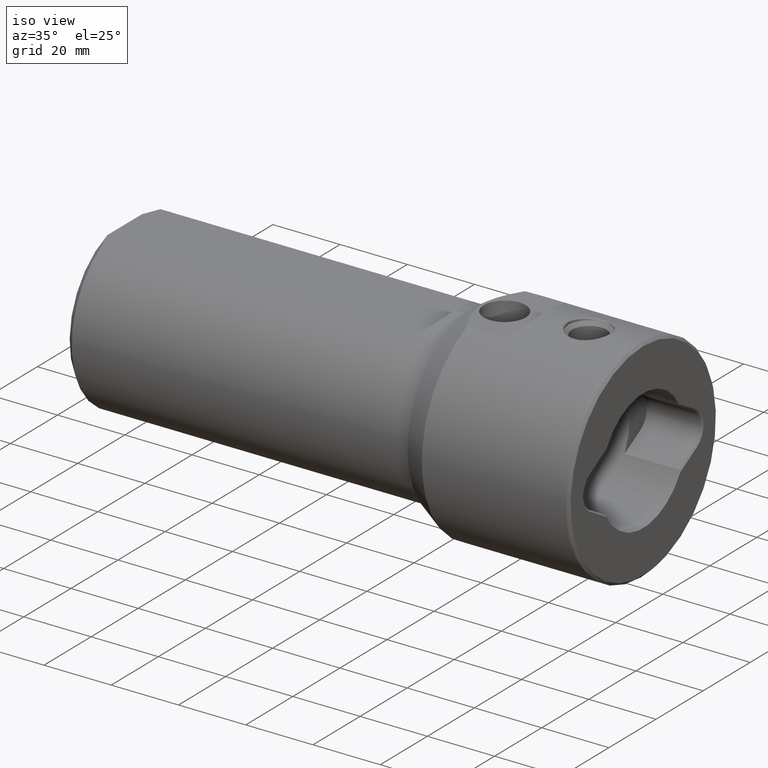
[diagram: clean part render]
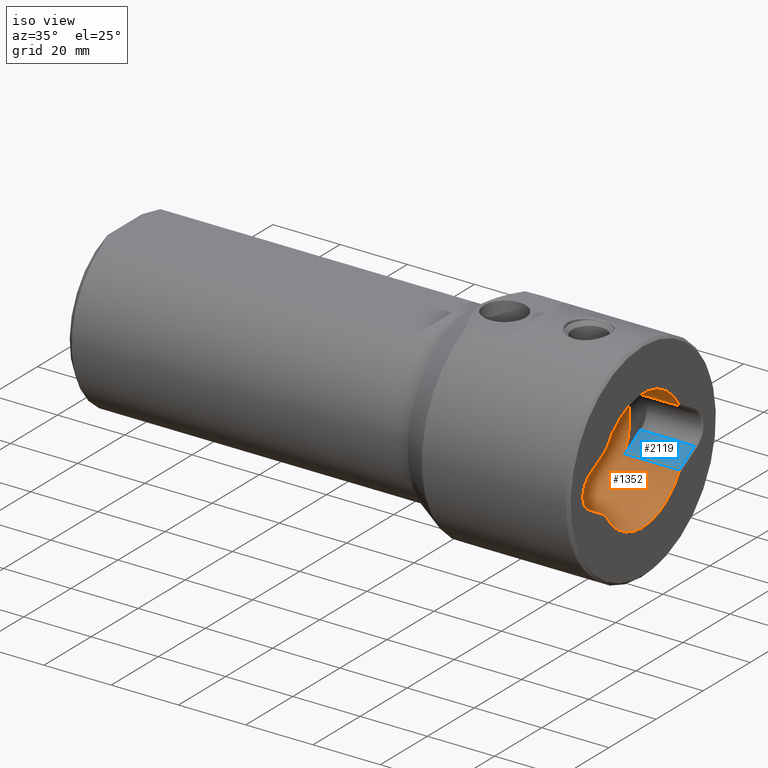
[diagram: same view with the hole feature highlighted: cylindrical wall and planar end face, labeled with their STEP entity ids]
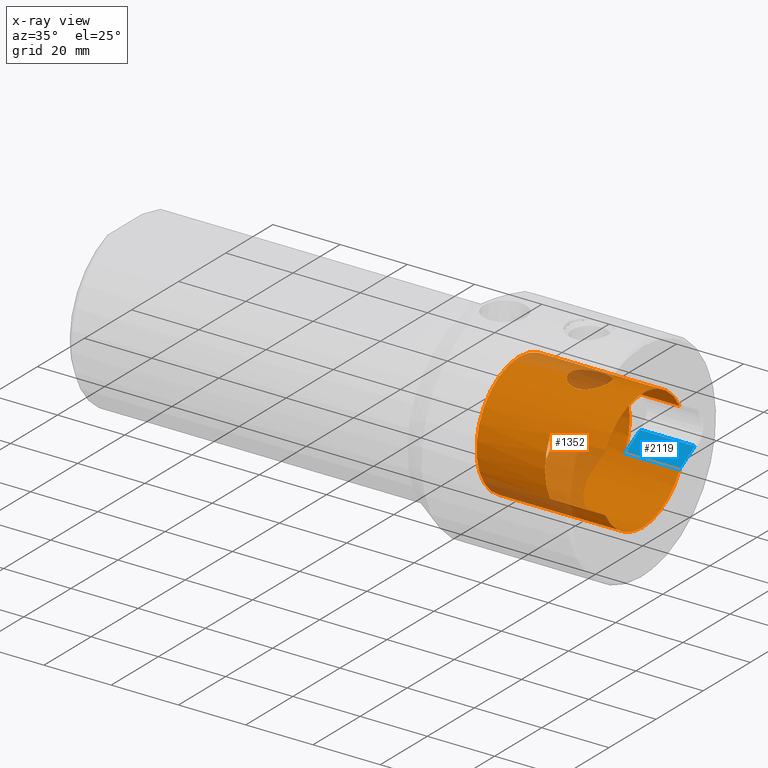
[diagram: x-ray of the same camera — body ghosted, the hole faces saturated]
A machine part, iso view. The highlighted faces form one hole feature of diameter 36 mm: the cylindrical wall (entity #1352, orange) and its adjacent planar end face (entity #2119, blue) — they share a circular edge in the B-rep.
The next image is the same camera in x-ray (body ghosted, the hole faces saturated) — the bore reads through the body.
Wall:
#4 = CARTESIAN_POINT ( 'NONE',  ( 139.4071677451608195, -5.275322577585097150, 17.20965742494446005 ) ) ;
#19 = CARTESIAN_POINT ( 'NONE',  ( 140.6225911474079737, -4.856214130552694463, 17.33314558854511844 ) ) ;
#25 = CIRCLE ( 'NONE', #101, 18.00000000000000000 ) ;
#27 = CARTESIAN_POINT ( 'NONE',  ( 136.7160160209145943, -5.275392231855630776, 17.21206762638223253 ) ) ;
#53 = LINE ( 'NONE', #1141, #848 ) ;
#66 = ORIENTED_EDGE ( 'NONE', *, *, #2093, .T. ) ;
#101 = AXIS2_PLACEMENT_3D ( 'NONE', #973, #602, #2269 ) ;
#121 = DIRECTION ( 'NONE',  ( 0.0000000000000000000, 0.0000000000000000000, -1.000000000000000000 ) ) ;
#126 = DIRECTION ( 'NONE',  ( 0.0000000000000000000, 0.0000000000000000000, 1.000000000000000000 ) ) ;
#130 = EDGE_CURVE ( 'NONE', #1479, #302, #1504, .T. ) ;
#145 = CARTESIAN_POINT ( 'NONE',  ( 112.1999999999461437, 0.0000000000000000000, 0.0000000000000000000 ) ) ;
#173 = EDGE_LOOP ( 'NONE', ( #241, #435, #496, #414, #296, #66, #209, #539, #1334, #712, #1026, #2165 ) ) ;
#181 = CARTESIAN_POINT ( 'NONE',  ( 134.4804482182612730, 4.077507523875326001, 17.53395048440978243 ) ) ;
#188 = CARTESIAN_POINT ( 'NONE',  ( 134.7599842732042532, 4.301005571742517297, 17.47974789442518073 ) ) ;
#192 = CARTESIAN_POINT ( 'NONE',  ( 153.8506716728961123, -15.77012789448501628, -8.678276287125131105 ) ) ;
#197 = CARTESIAN_POINT ( 'NONE',  ( 136.8967225192805870, 5.274663257304549546, 17.20985962191030438 ) ) ;
#201 = LINE ( 'NONE', #2233, #2075 ) ;
#209 = ORIENTED_EDGE ( 'NONE', *, *, #222, .T. ) ;
#210 = CARTESIAN_POINT ( 'NONE',  ( 135.3675463720331038, -4.684189885420427579, 17.38003936146874295 ) ) ;
#213 = AXIS2_PLACEMENT_3D ( 'NONE', #145, #2349, #1410 ) ;
#220 = CARTESIAN_POINT ( 'NONE',  ( 135.3589903073947198, 4.689469159019379774, 17.37956024723951742 ) ) ;
#222 = EDGE_CURVE ( 'NONE', #970, #1479, #25, .T. ) ;
#235 = FACE_BOUND ( 'NONE', #1087, .T. ) ;
#241 = ORIENTED_EDGE ( 'NONE', *, *, #1753, .T. ) ;
#271 = CARTESIAN_POINT ( 'NONE',  ( 137.5999999999431225, 0.0000000000000000000, 0.0000000000000000000 ) ) ;
#296 = ORIENTED_EDGE ( 'NONE', *, *, #982, .T. ) ;
#302 = VERTEX_POINT ( 'NONE', #1058 ) ;
#372 = CARTESIAN_POINT ( 'NONE',  ( 133.3432084980435661, -2.725912216281905387, 17.79485885170778303 ) ) ;
#381 = CARTESIAN_POINT ( 'NONE',  ( 138.8749981593181531, -5.380134665842309261, 17.17729603003633443 ) ) ;
#390 = CARTESIAN_POINT ( 'NONE',  ( 143.6998959704182823, 0.3555535653348128600, 18.00000000000000711 ) ) ;
#392 = CARTESIAN_POINT ( 'NONE',  ( 138.5161126754194356, -5.414859626381410607, 17.16622542328071077 ) ) ;
#400 = CARTESIAN_POINT ( 'NONE',  ( 132.9588676637769140, -1.912530922042934733, 17.89889519390576211 ) ) ;
#405 = CARTESIAN_POINT ( 'NONE',  ( 133.9680648088449288, 3.577402560942947840, 17.64277977286892707 ) ) ;
#414 = ORIENTED_EDGE ( 'NONE', *, *, #2352, .F. ) ;
#434 = DIRECTION ( 'NONE',  ( 1.000000000000000000, -0.0000000000000000000, -0.0000000000000000000 ) ) ;
#435 = ORIENTED_EDGE ( 'NONE', *, *, #617, .T. ) ;
#439 = CARTESIAN_POINT ( 'NONE',  ( 142.9836636985161817, 2.746618726639267649, 17.80190843968231107 ) ) ;
#441 = DIRECTION ( 'NONE',  ( 1.000000000000000000, -0.0000000000000000000, -0.0000000000000000000 ) ) ;
#463 = CARTESIAN_POINT ( 'NONE',  ( 153.9006727623731479, -15.72312315220965750, 8.763150772669689559 ) ) ;
#464 = VECTOR ( 'NONE', #596, 1000.000000000000000 ) ;
#465 = VERTEX_POINT ( 'NONE', #955 ) ;
#485 = AXIS2_PLACEMENT_3D ( 'NONE', #271, #832, #983 ) ;
#490 = FACE_OUTER_BOUND ( 'NONE', #173, .T. ) ;
#496 = ORIENTED_EDGE ( 'NONE', *, *, #1942, .F. ) ;
#498 = CARTESIAN_POINT ( 'NONE',  ( 143.7000000497833980, 2.204364238465235033E-15, 18.00000000000000000 ) ) ;
#509 = EDGE_CURVE ( 'NONE', #1331, #1059, #201, .T. ) ;
#513 =( BOUNDED_CURVE ( )  B_SPLINE_CURVE ( 3, ( #2208, #192, #1453, #1287 ),
 .UNSPECIFIED., .F., .F. ) 
 B_SPLINE_CURVE_WITH_KNOTS ( ( 4, 4 ),
 ( 5.733670025123926095, 5.749840058269255927 ),
 .UNSPECIFIED. ) 
 CURVE ( )  GEOMETRIC_REPRESENTATION_ITEM ( )  RATIONAL_B_SPLINE_CURVE ( ( 1.000000000000000000, 0.9999782109543648989, 0.9999782109543648989, 1.000000000000000000 ) ) 
 REPRESENTATION_ITEM ( '' )  );
#515 = VERTEX_POINT ( 'NONE', #1214 ) ;
#534 = VECTOR ( 'NONE', #1519, 1000.000000000000000 ) ;
#539 = ORIENTED_EDGE ( 'NONE', *, *, #130, .T. ) ;
#543 = CARTESIAN_POINT ( 'NONE',  ( 134.4848323067971307, -4.081226048703459952, 17.53309746227882115 ) ) ;
#551 = CARTESIAN_POINT ( 'NONE',  ( 140.6936762733481885, 4.809866024486192160, 17.34551927460076826 ) ) ;
#554 = CARTESIAN_POINT ( 'NONE',  ( 132.7434343652002156, -1.228688811699040873, 17.95885357221229484 ) ) ;
#559 = CARTESIAN_POINT ( 'NONE',  ( 132.8956890606161210, -1.741993651575351132, 17.91632804205162444 ) ) ;
#586 = LINE ( 'NONE', #1002, #534 ) ;
#596 = DIRECTION ( 'NONE',  ( 1.000000000000000000, -0.0000000000000000000, -0.0000000000000000000 ) ) ;
#602 = DIRECTION ( 'NONE',  ( 1.000000000000000000, 0.0000000000000000000, 0.0000000000000000000 ) ) ;
#617 = EDGE_CURVE ( 'NONE', #2055, #2078, #925, .T. ) ;
#623 = CARTESIAN_POINT ( 'NONE',  ( 153.9499999999461295, 0.0000000000000000000, 0.0000000000000000000 ) ) ;
#668 = CARTESIAN_POINT ( 'NONE',  ( 153.9006727623731194, 15.72312315220964685, 8.763150772669717981 ) ) ;
#712 = ORIENTED_EDGE ( 'NONE', *, *, #2225, .F. ) ;
#713 = EDGE_CURVE ( 'NONE', #1059, #1974, #790, .T. ) ;
#718 = CARTESIAN_POINT ( 'NONE',  ( 141.8195953230894020, -4.077874613042330232, 17.53386956080541381 ) ) ;
#728 = CARTESIAN_POINT ( 'NONE',  ( 135.8547184170847970, -4.924406833935957906, 17.31334101392724989 ) ) ;
#733 = CARTESIAN_POINT ( 'NONE',  ( 143.3398538865617979, 1.911986393682834739, 17.89895385736674527 ) ) ;
#738 = CARTESIAN_POINT ( 'NONE',  ( 136.1950096335361877, 5.062115865894671884, 17.27356385820862883 ) ) ;
#747 = CARTESIAN_POINT ( 'NONE',  ( 132.7428654689053360, 1.403430375279089759, 17.95795583747455382 ) ) ;
#761 = CARTESIAN_POINT ( 'NONE',  ( 142.9504682745342166, -2.717572966758940112, 17.79437340771247023 ) ) ;
#765 = EDGE_LOOP ( 'NONE', ( #1424 ) ) ;
#768 = CARTESIAN_POINT ( 'NONE',  ( 143.1211103841731926, -2.405015297314012201, 17.83930573824131471 ) ) ;
#781 = CARTESIAN_POINT ( 'NONE',  ( 153.7999999999430827, 15.81644489633135819, 8.593024545601727127 ) ) ;
#788 = CARTESIAN_POINT ( 'NONE',  ( 153.9499999999461295, 15.67543374207076212, 8.847642454233202614 ) ) ;
#790 =( BOUNDED_CURVE ( )  B_SPLINE_CURVE ( 3, ( #1573, #1924, #668, #2295 ),
 .UNSPECIFIED., .F., .T. ) 
 B_SPLINE_CURVE_WITH_KNOTS ( ( 4, 4 ),
 ( 5.733670025123929648, 5.749840058269260368 ),
 .UNSPECIFIED. ) 
 CURVE ( )  GEOMETRIC_REPRESENTATION_ITEM ( )  RATIONAL_B_SPLINE_CURVE ( ( 1.000000000000000000, 0.9999782109543648989, 0.9999782109543648989, 1.000000000000000000 ) ) 
 REPRESENTATION_ITEM ( '' )  );
#815 = CARTESIAN_POINT ( 'NONE',  ( 153.8506716728961408, -15.77012789448499497, 8.678276287125175514 ) ) ;
#832 = DIRECTION ( 'NONE',  ( -1.000000000000000000, -0.0000000000000000000, -0.0000000000000000000 ) ) ;
#848 = VECTOR ( 'NONE', #434, 1000.000000000000000 ) ;
#883 = VERTEX_POINT ( 'NONE', #1609 ) ;
#895 = CARTESIAN_POINT ( 'NONE',  ( 142.5593472136473281, -3.306248342122016570, 17.69622244244113674 ) ) ;
#904 = CARTESIAN_POINT ( 'NONE',  ( 138.8772917870732329, 5.414802009908745717, 17.16624359679500955 ) ) ;
#915 = CARTESIAN_POINT ( 'NONE',  ( 135.6078598936707635, -4.808643124717407957, 17.34585835498858941 ) ) ;
#922 = CARTESIAN_POINT ( 'NONE',  ( 135.6795860826698288, 4.855542281536477489, 17.33333456711514131 ) ) ;
#925 =( BOUNDED_CURVE ( )  B_SPLINE_CURVE ( 3, ( #988, #463, #815, #1318 ),
 .UNSPECIFIED., .F., .T. ) 
 B_SPLINE_CURVE_WITH_KNOTS ( ( 4, 4 ),
 ( 0.5333452489103285288, 0.5495152820556566953 ),
 .UNSPECIFIED. ) 
 CURVE ( )  GEOMETRIC_REPRESENTATION_ITEM ( )  RATIONAL_B_SPLINE_CURVE ( ( 1.000000000000000000, 0.9999782109543648989, 0.9999782109543648989, 1.000000000000000000 ) ) 
 REPRESENTATION_ITEM ( '' )  );
#927 = CARTESIAN_POINT ( 'NONE',  ( 136.1066967494883500, 5.028651010217463302, 17.28334364775512455 ) ) ;
#955 = CARTESIAN_POINT ( 'NONE',  ( 137.5999999999431225, -15.81644489633135819, 8.593024545601721798 ) ) ;
#968 = CARTESIAN_POINT ( 'NONE',  ( 143.7000000497833980, 2.710505431213761085E-15, 18.00000000000000355 ) ) ;
#970 = VERTEX_POINT ( 'NONE', #1984 ) ;
#973 = CARTESIAN_POINT ( 'NONE',  ( 153.9499999999461295, 0.0000000000000000000, 0.0000000000000000000 ) ) ;
#982 = EDGE_CURVE ( 'NONE', #1048, #1651, #1418, .T. ) ;
#983 = DIRECTION ( 'NONE',  ( 0.0000000000000000000, 0.0000000000000000000, -1.000000000000000000 ) ) ;
#988 = CARTESIAN_POINT ( 'NONE',  ( 153.9499999999461295, -15.67543374207077456, 8.847642454233159981 ) ) ;
#1002 = CARTESIAN_POINT ( 'NONE',  ( 137.5999999999431225, -15.81644489633135819, 8.593024545601721798 ) ) ;
#1026 = ORIENTED_EDGE ( 'NONE', *, *, #509, .T. ) ;
#1048 = VERTEX_POINT ( 'NONE', #1715 ) ;
#1058 = CARTESIAN_POINT ( 'NONE',  ( 153.7999999999431111, 15.81644489633137241, -8.593024545601693376 ) ) ;
#1059 = VERTEX_POINT ( 'NONE', #781 ) ;
#1082 = CARTESIAN_POINT ( 'NONE',  ( 136.4569918073772214, 5.152039899776192478, 17.24694866929598192 ) ) ;
#1087 = EDGE_LOOP ( 'NONE', ( #2198 ) ) ;
#1092 = CARTESIAN_POINT ( 'NONE',  ( 137.7882245050393237, 5.414550071365628270, 17.16632306384884288 ) ) ;
#1097 = CARTESIAN_POINT ( 'NONE',  ( 140.9336031977051960, 4.685438517971939554, 17.37970270777146453 ) ) ;
#1105 = CARTESIAN_POINT ( 'NONE',  ( 135.2125733590289656, -4.594255491006206782, 17.40410430008466491 ) ) ;
#1117 = CARTESIAN_POINT ( 'NONE',  ( 135.9375997356319488, -4.960218887504321827, 17.30310831216911538 ) ) ;
#1127 = CARTESIAN_POINT ( 'NONE',  ( 143.1987407815099687, -2.244865655166357055, 17.86026857338545071 ) ) ;
#1132 = CIRCLE ( 'NONE', #1212, 18.00000000000000000 ) ;
#1135 = CIRCLE ( 'NONE', #1542, 18.00000000000000000 ) ;
#1141 = CARTESIAN_POINT ( 'NONE',  ( 137.5999999999431225, 15.81644489633137241, -8.593024545601693376 ) ) ;
#1164 = B_SPLINE_CURVE_WITH_KNOTS ( 'NONE', 3,
 ( #1758, #390, #1253, #1178, #1930, #1242, #733, #439, #1181, #2313, #2145, #2029, #1097, #551, #1275, #1661, #1655, #2206, #904, #1092, #1464, #197, #1810, #1082, #1263, #738, #927, #922, #220, #188, #181, #405, #1822, #1450, #1457, #747, #2359, #1258, #2002, #554, #1441, #559, #400, #2181, #372, #1634, #2008, #543, #1837, #1105, #210, #915, #1630, #728, #1117, #27, #2187, #392, #381, #4, #1642, #1831, #2015, #1291, #2199, #19, #1805, #1285, #718, #1993, #895, #2174, #761, #768, #1127, #1319, #1299, #968 ),
 .UNSPECIFIED., .T., .F.,
 ( 4, 2, 2, 2, 2, 2, 2, 2, 2, 2, 2, 2, 2, 2, 2, 2, 2, 2, 2, 2, 2, 2, 2, 2, 2, 2, 2, 2, 2, 2, 2, 2, 2, 2, 2, 2, 2, 2, 4 ),
 ( 0.0000000000000000000, 0.03125000000000602990, 0.04687500000000904832, 0.06250000000001205980, 0.1250000000000241751, 0.1562500000000294209, 0.1718750000000320577, 0.1796875000000333900, 0.1875000000000347222, 0.2500000000000454081, 0.2812500000000496270, 0.2968750000000516809, 0.3046875000000526801, 0.3125000000000536793, 0.3437500000000535127, 0.3750000000000532907, 0.4062500000000531242, 0.4375000000000529576, 0.5000000000000525135, 0.5312500000000522915, 0.5468750000000521805, 0.5625000000000521805, 0.5937500000000519584, 0.6250000000000517364, 0.6562500000000516254, 0.6718750000000515143, 0.6796875000000514033, 0.6875000000000514033, 0.7500000000000466294, 0.7812500000000444089, 0.7968750000000431877, 0.8046875000000426326, 0.8125000000000419664, 0.8437500000000350830, 0.8750000000000283107, 0.9062500000000214273, 0.9218750000000179856, 0.9375000000000145439, 1.000000000000000000 ),
 .UNSPECIFIED. ) ;
#1178 = CARTESIAN_POINT ( 'NONE',  ( 143.5560491971254180, 1.226950927770529942, 17.95897377007293017 ) ) ;
#1181 = CARTESIAN_POINT ( 'NONE',  ( 142.5857165579043055, 3.329435415979743240, 17.69685802120538298 ) ) ;
#1212 = AXIS2_PLACEMENT_3D ( 'NONE', #1486, #1667, #2067 ) ;
#1214 = CARTESIAN_POINT ( 'NONE',  ( 117.1999999999461579, 0.0000000000000000000, -18.00000000000000000 ) ) ;
#1221 = CARTESIAN_POINT ( 'NONE',  ( 137.5999999999431225, 15.81644489633135819, 8.593024545601727127 ) ) ;
#1242 = CARTESIAN_POINT ( 'NONE',  ( 143.4033323422677597, 1.740907309829275995, 17.91643584873475703 ) ) ;
#1253 = CARTESIAN_POINT ( 'NONE',  ( 143.6638952473330448, 0.7069533894611689240, 17.98946376961879778 ) ) ;
#1258 = CARTESIAN_POINT ( 'NONE',  ( 132.6000652598229692, -0.3578332509680497431, 17.99995617438889184 ) ) ;
#1263 = CARTESIAN_POINT ( 'NONE',  ( 136.3694971860697649, 5.123542816546620138, 17.25544361673636828 ) ) ;
#1275 = CARTESIAN_POINT ( 'NONE',  ( 140.6123903278044338, 4.849597146018073346, 17.33444449851090496 ) ) ;
#1285 = CARTESIAN_POINT ( 'NONE',  ( 141.5404336017755327, -4.301511558502139287, 17.47962440867450695 ) ) ;
#1287 = CARTESIAN_POINT ( 'NONE',  ( 153.9499999999461295, -15.67543374207078877, -8.847642454233136888 ) ) ;
#1291 = CARTESIAN_POINT ( 'NONE',  ( 140.1082590629429490, -5.062750028817435854, 17.27337803155698026 ) ) ;
#1299 = CARTESIAN_POINT ( 'NONE',  ( 143.7002082085136294, -0.7111071306693158567, 17.99999999999999645 ) ) ;
#1318 = CARTESIAN_POINT ( 'NONE',  ( 153.7999999999431111, -15.81644489633135819, 8.593024545601721798 ) ) ;
#1319 = CARTESIAN_POINT ( 'NONE',  ( 143.5570061110018401, -1.404711169852636443, 17.95785710213158737 ) ) ;
#1323 = CARTESIAN_POINT ( 'NONE',  ( 153.9499999999461295, 15.67543374207079943, -8.847642454233117348 ) ) ;
#1331 = VERTEX_POINT ( 'NONE', #1221 ) ;
#1334 = ORIENTED_EDGE ( 'NONE', *, *, #2209, .F. ) ;
#1336 = CARTESIAN_POINT ( 'NONE',  ( 153.9006727623731479, 15.72312315220968415, -8.763150772669646926 ) ) ;
#1345 = CARTESIAN_POINT ( 'NONE',  ( 153.8506716728961408, 15.77012789448501984, -8.678276287125129329 ) ) ;
#1352 = ADVANCED_FACE ( 'NONE', ( #235, #490, #1560 ), #2303, .F. ) ;
#1386 = DIRECTION ( 'NONE',  ( -1.000000000000000000, -0.0000000000000000000, -6.123031769111886291E-17 ) ) ;
#1410 = DIRECTION ( 'NONE',  ( 0.0000000000000000000, 0.0000000000000000000, -1.000000000000000000 ) ) ;
#1418 = LINE ( 'NONE', #2012, #464 ) ;
#1424 = ORIENTED_EDGE ( 'NONE', *, *, #1719, .T. ) ;
#1434 = VERTEX_POINT ( 'NONE', #498 ) ;
#1441 = CARTESIAN_POINT ( 'NONE',  ( 132.7882189724839748, -1.400650940730808314, 17.94623997763219947 ) ) ;
#1450 = CARTESIAN_POINT ( 'NONE',  ( 133.3419391072065139, 2.722639938054498110, 17.79536237048684200 ) ) ;
#1453 = CARTESIAN_POINT ( 'NONE',  ( 153.9006727623731194, -15.72312315220967704, -8.763150772669659361 ) ) ;
#1457 = CARTESIAN_POINT ( 'NONE',  ( 133.1720445784535798, 2.411568754243231361, 17.84093004339441535 ) ) ;
#1464 = CARTESIAN_POINT ( 'NONE',  ( 137.4292155983454791, 5.379621515465339066, 17.17745717752232437 ) ) ;
#1479 = VERTEX_POINT ( 'NONE', #1484 ) ;
#1484 = CARTESIAN_POINT ( 'NONE',  ( 153.9499999999461295, 15.67543374207079943, -8.847642454233117348 ) ) ;
#1486 = CARTESIAN_POINT ( 'NONE',  ( 137.5999999999431225, 0.0000000000000000000, 0.0000000000000000000 ) ) ;
#1504 =( BOUNDED_CURVE ( )  B_SPLINE_CURVE ( 3, ( #1323, #1336, #1345, #1890 ),
 .UNSPECIFIED., .F., .F. ) 
 B_SPLINE_CURVE_WITH_KNOTS ( ( 4, 4 ),
 ( 0.5333452489103325256, 0.5495152820556605811 ),
 .UNSPECIFIED. ) 
 CURVE ( )  GEOMETRIC_REPRESENTATION_ITEM ( )  RATIONAL_B_SPLINE_CURVE ( ( 1.000000000000000000, 0.9999782109543648989, 0.9999782109543648989, 1.000000000000000000 ) ) 
 REPRESENTATION_ITEM ( '' )  );
#1519 = DIRECTION ( 'NONE',  ( 1.000000000000000000, -0.0000000000000000000, -0.0000000000000000000 ) ) ;
#1542 = AXIS2_PLACEMENT_3D ( 'NONE', #623, #1938, #126 ) ;
#1560 = FACE_OUTER_BOUND ( 'NONE', #765, .T. ) ;
#1565 = CARTESIAN_POINT ( 'NONE',  ( 153.9499999999461295, -15.67543374207077456, 8.847642454233159981 ) ) ;
#1573 = CARTESIAN_POINT ( 'NONE',  ( 153.7999999999430827, 15.81644489633135819, 8.593024545601727127 ) ) ;
#1609 = CARTESIAN_POINT ( 'NONE',  ( 137.5999999999431225, 15.81644489633137241, -8.593024545601693376 ) ) ;
#1630 = CARTESIAN_POINT ( 'NONE',  ( 135.6892734012386086, -4.848386105433996285, 17.33478329553862096 ) ) ;
#1634 = CARTESIAN_POINT ( 'NONE',  ( 133.7422871100112616, -3.309476676862082467, 17.69561988426467991 ) ) ;
#1641 = CIRCLE ( 'NONE', #1709, 18.00000000000000000 ) ;
#1642 = CARTESIAN_POINT ( 'NONE',  ( 139.5835311671073669, -5.231591477147981450, 17.22305040738715931 ) ) ;
#1651 = VERTEX_POINT ( 'NONE', #2267 ) ;
#1655 = CARTESIAN_POINT ( 'NONE',  ( 140.3644509665978433, 4.961377068239488430, 17.30277622210832789 ) ) ;
#1661 = CARTESIAN_POINT ( 'NONE',  ( 140.4471978285338309, 4.925587632130185689, 17.31300508371748847 ) ) ;
#1667 = DIRECTION ( 'NONE',  ( -1.000000000000000000, -0.0000000000000000000, -0.0000000000000000000 ) ) ;
#1709 = AXIS2_PLACEMENT_3D ( 'NONE', #2155, #1386, #121 ) ;
#1715 = CARTESIAN_POINT ( 'NONE',  ( 137.5999999999431225, -15.81644489633139372, -8.593024545601695152 ) ) ;
#1719 = EDGE_CURVE ( 'NONE', #515, #515, #1641, .T. ) ;
#1753 = EDGE_CURVE ( 'NONE', #1974, #2055, #1135, .T. ) ;
#1758 = CARTESIAN_POINT ( 'NONE',  ( 143.7000000497833980, 2.710505431213761085E-15, 18.00000000000000355 ) ) ;
#1805 = CARTESIAN_POINT ( 'NONE',  ( 140.9424761872899410, -4.690144412610963265, 17.37937906097659280 ) ) ;
#1810 = CARTESIAN_POINT ( 'NONE',  ( 136.7202282064216945, 5.230910011234539247, 17.22325737412155178 ) ) ;
#1822 = CARTESIAN_POINT ( 'NONE',  ( 133.7403629866339543, 3.306525386042492798, 17.69617416281510103 ) ) ;
#1828 = EDGE_CURVE ( 'NONE', #1434, #1434, #1164, .T. ) ;
#1831 = CARTESIAN_POINT ( 'NONE',  ( 139.8465366400257892, -5.152714468620286148, 17.24674715083000365 ) ) ;
#1837 = CARTESIAN_POINT ( 'NONE',  ( 134.7633623242794556, -4.303334574324201967, 17.47917136368003810 ) ) ;
#1890 = CARTESIAN_POINT ( 'NONE',  ( 153.7999999999431111, 15.81644489633137241, -8.593024545601693376 ) ) ;
#1924 = CARTESIAN_POINT ( 'NONE',  ( 153.8506716728961123, 15.77012789448499142, 8.678276287125187949 ) ) ;
#1930 = CARTESIAN_POINT ( 'NONE',  ( 143.5111263527928713, 1.399101087548224376, 17.94636308364639632 ) ) ;
#1938 = DIRECTION ( 'NONE',  ( 1.000000000000000000, 0.0000000000000000000, 0.0000000000000000000 ) ) ;
#1942 = EDGE_CURVE ( 'NONE', #465, #2078, #586, .T. ) ;
#1974 = VERTEX_POINT ( 'NONE', #788 ) ;
#1984 = CARTESIAN_POINT ( 'NONE',  ( 153.9499999999461295, -15.67543374207078877, -8.847642454233136888 ) ) ;
#1993 = CARTESIAN_POINT ( 'NONE',  ( 142.3317487135980457, -3.577175011682489636, 17.64283033050047322 ) ) ;
#2002 = CARTESIAN_POINT ( 'NONE',  ( 132.6359318536961780, -0.7091226564247595787, 17.98937287274831576 ) ) ;
#2008 = CARTESIAN_POINT ( 'NONE',  ( 133.9696602832004260, -3.579517179901129609, 17.64236292113888993 ) ) ;
#2012 = CARTESIAN_POINT ( 'NONE',  ( 137.5999999999431225, -15.81644489633139372, -8.593024545601695152 ) ) ;
#2015 = CARTESIAN_POINT ( 'NONE',  ( 139.9339485209983138, -5.124208398123069941, 17.25524600717043811 ) ) ;
#2029 = CARTESIAN_POINT ( 'NONE',  ( 141.0883132642439932, 4.595508154493127329, 17.40377364527488524 ) ) ;
#2055 = VERTEX_POINT ( 'NONE', #1565 ) ;
#2067 = DIRECTION ( 'NONE',  ( 0.0000000000000000000, -1.776356839400250465E-15, -1.000000000000000000 ) ) ;
#2075 = VECTOR ( 'NONE', #441, 1000.000000000000000 ) ;
#2078 = VERTEX_POINT ( 'NONE', #2310 ) ;
#2093 = EDGE_CURVE ( 'NONE', #1651, #970, #513, .T. ) ;
#2145 = CARTESIAN_POINT ( 'NONE',  ( 141.5367198147630461, 4.304559398442515672, 17.47887003101718406 ) ) ;
#2155 = CARTESIAN_POINT ( 'NONE',  ( 117.1999999999461579, 0.0000000000000000000, 0.0000000000000000000 ) ) ;
#2165 = ORIENTED_EDGE ( 'NONE', *, *, #713, .T. ) ;
#2174 = CARTESIAN_POINT ( 'NONE',  ( 142.8580276709134012, -2.868641928612300163, 17.77055950704542653 ) ) ;
#2181 = CARTESIAN_POINT ( 'NONE',  ( 133.1722960497329495, -2.413153824936560721, 17.84067216721295424 ) ) ;
#2187 = CARTESIAN_POINT ( 'NONE',  ( 137.4271389437116966, -5.414180740748576248, 17.16643955896867269 ) ) ;
#2198 = ORIENTED_EDGE ( 'NONE', *, *, #1828, .T. ) ;
#2199 = CARTESIAN_POINT ( 'NONE',  ( 140.1966019317567600, -5.029211218443858655, 17.28318059559628495 ) ) ;
#2206 = CARTESIAN_POINT ( 'NONE',  ( 139.5870620201186227, 5.276393863900831427, 17.21175824115670494 ) ) ;
#2208 = CARTESIAN_POINT ( 'NONE',  ( 153.7999999999431111, -15.81644489633139372, -8.593024545601695152 ) ) ;
#2209 = EDGE_CURVE ( 'NONE', #883, #302, #53, .T. ) ;
#2225 = EDGE_CURVE ( 'NONE', #1331, #883, #1132, .T. ) ;
#2233 = CARTESIAN_POINT ( 'NONE',  ( 137.5999999999431225, 15.81644489633135819, 8.593024545601727127 ) ) ;
#2267 = CARTESIAN_POINT ( 'NONE',  ( 153.7999999999431111, -15.81644489633139372, -8.593024545601695152 ) ) ;
#2269 = DIRECTION ( 'NONE',  ( 0.0000000000000000000, 8.881784197001252323E-16, 1.000000000000000000 ) ) ;
#2295 = CARTESIAN_POINT ( 'NONE',  ( 153.9499999999461295, 15.67543374207076212, 8.847642454233202614 ) ) ;
#2299 = CIRCLE ( 'NONE', #485, 18.00000000000000000 ) ;
#2303 = CYLINDRICAL_SURFACE ( 'NONE', #213, 18.00000000000000000 ) ;
#2310 = CARTESIAN_POINT ( 'NONE',  ( 153.7999999999431111, -15.81644489633135819, 8.593024545601721798 ) ) ;
#2313 = CARTESIAN_POINT ( 'NONE',  ( 141.8146926496459059, 4.082379076300640008, 17.53283097735082308 ) ) ;
#2349 = DIRECTION ( 'NONE',  ( 1.000000000000000000, -0.0000000000000000000, -0.0000000000000000000 ) ) ;
#2352 = EDGE_CURVE ( 'NONE', #1048, #465, #2299, .T. ) ;
#2359 = CARTESIAN_POINT ( 'NONE',  ( 132.5998707195922464, 0.7090323551860182594, 18.00008724370458424 ) ) ;
End face:
#53 = LINE ( 'NONE', #1141, #848 ) ;
#227 = DIRECTION ( 'NONE',  ( 0.0000000000000000000, 0.8660254037844402619, 0.4999999999999972244 ) ) ;
#233 = CARTESIAN_POINT ( 'NONE',  ( 137.5999999999431225, 15.81644489633137241, -8.593024545601693376 ) ) ;
#292 = VECTOR ( 'NONE', #227, 1000.000000000000114 ) ;
#302 = VERTEX_POINT ( 'NONE', #1058 ) ;
#324 = LINE ( 'NONE', #971, #1390 ) ;
#423 = PLANE ( 'NONE',  #1576 ) ;
#434 = DIRECTION ( 'NONE',  ( 1.000000000000000000, -0.0000000000000000000, -0.0000000000000000000 ) ) ;
#449 = CARTESIAN_POINT ( 'NONE',  ( 153.7999999999431111, 22.45000000000002061, -4.763139720814411504 ) ) ;
#600 = CARTESIAN_POINT ( 'NONE',  ( 137.5999999999431225, 15.81644489633137241, -8.593024545601693376 ) ) ;
#685 = ORIENTED_EDGE ( 'NONE', *, *, #1207, .F. ) ;
#848 = VECTOR ( 'NONE', #434, 1000.000000000000000 ) ;
#883 = VERTEX_POINT ( 'NONE', #1609 ) ;
#971 = CARTESIAN_POINT ( 'NONE',  ( 153.7999999999431111, 15.81644489633137241, -8.593024545601693376 ) ) ;
#1021 = DIRECTION ( 'NONE',  ( 1.000000000000000000, -0.0000000000000000000, -0.0000000000000000000 ) ) ;
#1022 = VERTEX_POINT ( 'NONE', #449 ) ;
#1058 = CARTESIAN_POINT ( 'NONE',  ( 153.7999999999431111, 15.81644489633137241, -8.593024545601693376 ) ) ;
#1131 = DIRECTION ( 'NONE',  ( 0.0000000000000000000, 0.8660254037844401509, 0.4999999999999972244 ) ) ;
#1141 = CARTESIAN_POINT ( 'NONE',  ( 137.5999999999431225, 15.81644489633137241, -8.593024545601693376 ) ) ;
#1204 = CARTESIAN_POINT ( 'NONE',  ( 137.5999999999431225, 22.45000000000002061, -4.763139720814411504 ) ) ;
#1207 = EDGE_CURVE ( 'NONE', #1827, #1022, #2025, .T. ) ;
#1243 = LINE ( 'NONE', #233, #292 ) ;
#1311 = ORIENTED_EDGE ( 'NONE', *, *, #2209, .T. ) ;
#1363 = ORIENTED_EDGE ( 'NONE', *, *, #1871, .F. ) ;
#1366 = ORIENTED_EDGE ( 'NONE', *, *, #2236, .T. ) ;
#1390 = VECTOR ( 'NONE', #1131, 1000.000000000000114 ) ;
#1452 = EDGE_LOOP ( 'NONE', ( #1311, #1366, #685, #1363 ) ) ;
#1576 = AXIS2_PLACEMENT_3D ( 'NONE', #600, #1863, #1678 ) ;
#1609 = CARTESIAN_POINT ( 'NONE',  ( 137.5999999999431225, 15.81644489633137241, -8.593024545601693376 ) ) ;
#1678 = DIRECTION ( 'NONE',  ( 0.0000000000000000000, 0.8660254037844401509, 0.4999999999999972244 ) ) ;
#1827 = VERTEX_POINT ( 'NONE', #1204 ) ;
#1863 = DIRECTION ( 'NONE',  ( 0.0000000000000000000, 0.4999999999999972800, -0.8660254037844402619 ) ) ;
#1871 = EDGE_CURVE ( 'NONE', #883, #1827, #1243, .T. ) ;
#2025 = LINE ( 'NONE', #2317, #2334 ) ;
#2119 = ADVANCED_FACE ( 'NONE', ( #2184 ), #423, .F. ) ;
#2184 = FACE_OUTER_BOUND ( 'NONE', #1452, .T. ) ;
#2209 = EDGE_CURVE ( 'NONE', #883, #302, #53, .T. ) ;
#2236 = EDGE_CURVE ( 'NONE', #302, #1022, #324, .T. ) ;
#2317 = CARTESIAN_POINT ( 'NONE',  ( 137.5999999999431225, 22.45000000000002061, -4.763139720814411504 ) ) ;
#2334 = VECTOR ( 'NONE', #1021, 1000.000000000000000 ) ;